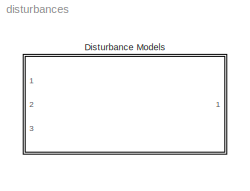
MODEL disturbances
KIND model
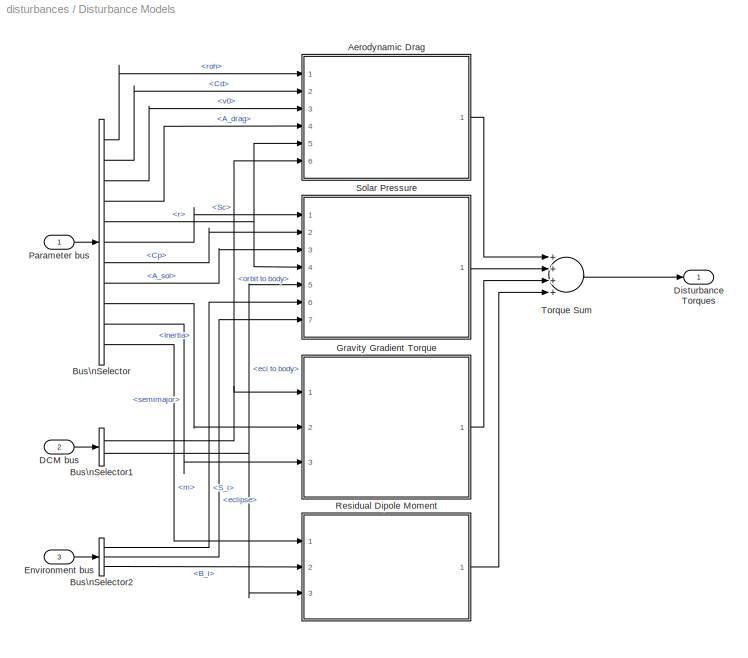
BLOCK [SubSystem] Disturbance Models
  MaskHideContents = off
  MinAlgLoopOccurrences = off
  Ports = [3, 1]
  RTWSystemCode = Auto
  TreatAsAtomicUnit = off
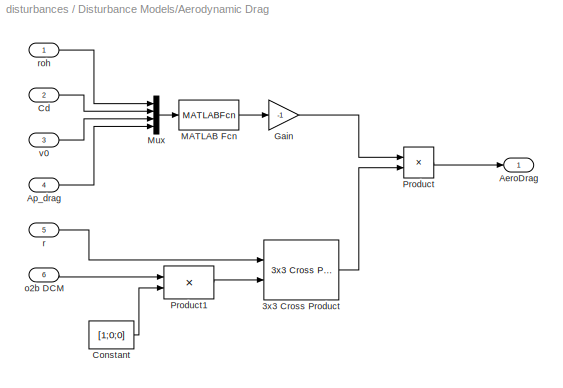
BLOCK [SubSystem] Disturbance Models/Aerodynamic Drag
  MaskHideContents = off
  MinAlgLoopOccurrences = off
  Ports = [6, 1]
  RTWSystemCode = Auto
  TreatAsAtomicUnit = off
BLOCK [Reference] Disturbance Models/Aerodynamic Drag/3x3 Cross Product  REF=aerolibutil/3x3 Cross Product
  Ports = [2, 1]
  ShowPortLabels = on
  SourceBlock = aerolibutil/3x3 Cross Product
  SourceType = CrossProduct
BLOCK [Outport] Disturbance Models/Aerodynamic Drag/AeroDrag
  BusOutputAsStruct = off
  IconDisplay = Port number
BLOCK [Inport] Disturbance Models/Aerodynamic Drag/Ap_drag
  IconDisplay = Port number
  Port = 4
BLOCK [Inport] Disturbance Models/Aerodynamic Drag/Cd
  IconDisplay = Port number
  Port = 2
BLOCK [Constant] Disturbance Models/Aerodynamic Drag/Constant
  Value = [1;0;0]
BLOCK [Gain] Disturbance Models/Aerodynamic Drag/Gain
  Gain = -1
  OutDataTypeMode = Inherit via internal rule
  ParameterDataTypeMode = Inherit via internal rule
  SaturateOnIntegerOverflow = off
BLOCK [MATLABFcn] Disturbance Models/Aerodynamic Drag/MATLAB Fcn
  MATLABFcn = 0.5*u(1)*u(2)*u(3)^2*u(4)
BLOCK [Mux] Disturbance Models/Aerodynamic Drag/Mux
  DisplayOption = bar
  Ports = [4, 1]
BLOCK [Product] Disturbance Models/Aerodynamic Drag/Product
  InputSameDT = off
  OutDataTypeMode = Inherit via internal rule
  Ports = [2, 1]
  SaturateOnIntegerOverflow = off
BLOCK [Product] Disturbance Models/Aerodynamic Drag/Product1
  InputSameDT = off
  Multiplication = Matrix(*)
  OutDataTypeMode = Inherit via internal rule
  Ports = [2, 1]
  SaturateOnIntegerOverflow = off
BLOCK [Inport] Disturbance Models/Aerodynamic Drag/o2b DCM
  IconDisplay = Port number
  Port = 6
BLOCK [Inport] Disturbance Models/Aerodynamic Drag/r
  IconDisplay = Port number
  Port = 5
BLOCK [Inport] Disturbance Models/Aerodynamic Drag/roh
  IconDisplay = Port number
BLOCK [Inport] Disturbance Models/Aerodynamic Drag/v0
  IconDisplay = Port number
  Port = 3
BLOCK [BusSelector] Disturbance Models/Bus\nSelector
  OutputSignals = Orbit Parameters.roh,Satellite Parameters.Cd,Orbit Parameters.v0,Satellite Parameters.A_drag,Satellite Parameters.r,Orbit Parameters.Sc,Satellite Parameters.Cp,Satellite Parameters.A_sol,Satellite Parameters.Inertia,Orbit Parameters.semimajor,Satellite Parameters.m
  Ports = [1, 11]
BLOCK [BusSelector] Disturbance Models/Bus\nSelector1
  OutputSignals = orbit to body,eci to body
  Ports = [1, 2]
BLOCK [BusSelector] Disturbance Models/Bus\nSelector2
  OutputSignals = Sun Model.S_i,Sun Model.eclipse,Magnetic Field Model.B_i
  Ports = [1, 3]
BLOCK [Inport] Disturbance Models/DCM bus
  IconDisplay = Port number
  Port = 2
BLOCK [Outport] Disturbance Models/Disturbance Torques
  BusOutputAsStruct = off
  IconDisplay = Port number
BLOCK [Inport] Disturbance Models/Environment bus
  IconDisplay = Port number
  Port = 3
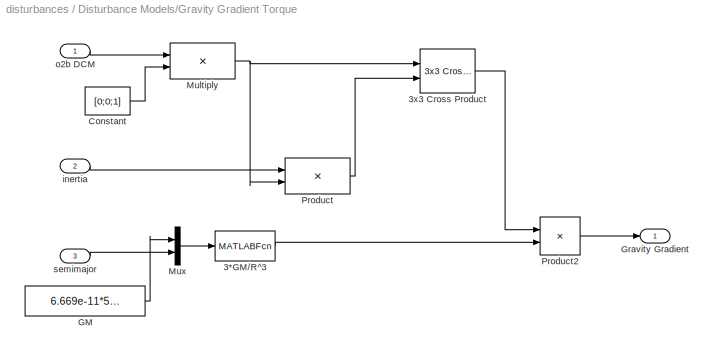
BLOCK [SubSystem] Disturbance Models/Gravity Gradient Torque
  MaskHideContents = off
  MinAlgLoopOccurrences = off
  Ports = [3, 1]
  RTWSystemCode = Auto
  TreatAsAtomicUnit = off
BLOCK [MATLABFcn] Disturbance Models/Gravity Gradient Torque/3*GM//R^3
  MATLABFcn = 3*u(1)/u(2)^3
BLOCK [Reference] Disturbance Models/Gravity Gradient Torque/3x3 Cross Product  REF=aerolibutil/3x3 Cross Product
  Ports = [2, 1]
  ShowPortLabels = on
  SourceBlock = aerolibutil/3x3 Cross Product
  SourceType = CrossProduct
BLOCK [Constant] Disturbance Models/Gravity Gradient Torque/Constant
  Value = [0;0;1]
BLOCK [Constant] Disturbance Models/Gravity Gradient Torque/GM
  Value = 6.669e-11*5.9742e24
BLOCK [Outport] Disturbance Models/Gravity Gradient Torque/Gravity Gradient
  BusOutputAsStruct = off
  IconDisplay = Port number
BLOCK [Product] Disturbance Models/Gravity Gradient Torque/Multiply
  InputSameDT = off
  Multiplication = Matrix(*)
  OutDataTypeMode = Inherit via internal rule
  Ports = [2, 1]
  SaturateOnIntegerOverflow = off
BLOCK [Mux] Disturbance Models/Gravity Gradient Torque/Mux
  DisplayOption = bar
  Inputs = 2
  Ports = [2, 1]
BLOCK [Product] Disturbance Models/Gravity Gradient Torque/Product
  InputSameDT = off
  Multiplication = Matrix(*)
  OutDataTypeMode = Inherit via internal rule
  Ports = [2, 1]
  SaturateOnIntegerOverflow = off
BLOCK [Product] Disturbance Models/Gravity Gradient Torque/Product2
  InputSameDT = off
  OutDataTypeMode = Inherit via internal rule
  Ports = [2, 1]
  SaturateOnIntegerOverflow = off
BLOCK [Inport] Disturbance Models/Gravity Gradient Torque/inertia
  IconDisplay = Port number
  Port = 2
BLOCK [Inport] Disturbance Models/Gravity Gradient Torque/o2b DCM
  IconDisplay = Port number
BLOCK [Inport] Disturbance Models/Gravity Gradient Torque/semimajor
  IconDisplay = Port number
  Port = 3
BLOCK [Inport] Disturbance Models/Parameter bus
  IconDisplay = Port number
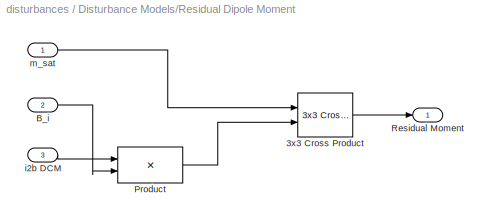
BLOCK [SubSystem] Disturbance Models/Residual Dipole Moment
  MaskHideContents = off
  MinAlgLoopOccurrences = off
  Ports = [3, 1]
  RTWSystemCode = Auto
  TreatAsAtomicUnit = off
BLOCK [Reference] Disturbance Models/Residual Dipole Moment/3x3 Cross Product  REF=aerolibutil/3x3 Cross Product
  Ports = [2, 1]
  ShowPortLabels = on
  SourceBlock = aerolibutil/3x3 Cross Product
  SourceType = CrossProduct
BLOCK [Inport] Disturbance Models/Residual Dipole Moment/B_i
  IconDisplay = Port number
  Port = 2
BLOCK [Product] Disturbance Models/Residual Dipole Moment/Product
  InputSameDT = off
  Multiplication = Matrix(*)
  OutDataTypeMode = Inherit via internal rule
  Ports = [2, 1]
  SaturateOnIntegerOverflow = off
BLOCK [Outport] Disturbance Models/Residual Dipole Moment/Residual Moment
  BusOutputAsStruct = off
  IconDisplay = Port number
BLOCK [Inport] Disturbance Models/Residual Dipole Moment/i2b DCM
  IconDisplay = Port number
  Port = 3
BLOCK [Inport] Disturbance Models/Residual Dipole Moment/m_sat
  IconDisplay = Port number
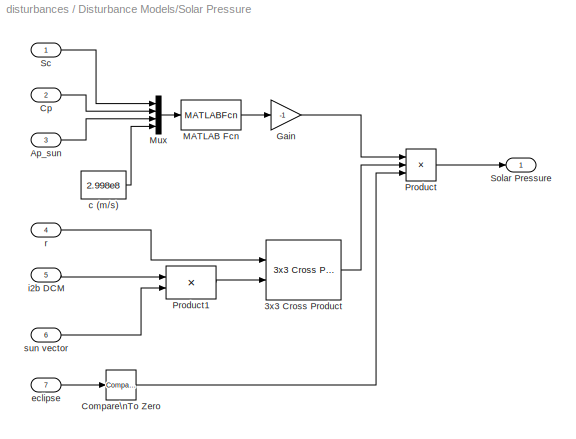
BLOCK [SubSystem] Disturbance Models/Solar Pressure
  MaskHideContents = off
  MinAlgLoopOccurrences = off
  Ports = [7, 1]
  RTWSystemCode = Auto
  TreatAsAtomicUnit = off
BLOCK [Reference] Disturbance Models/Solar Pressure/3x3 Cross Product  REF=aerolibutil/3x3 Cross Product
  Ports = [2, 1]
  ShowPortLabels = on
  SourceBlock = aerolibutil/3x3 Cross Product
  SourceType = CrossProduct
BLOCK [Inport] Disturbance Models/Solar Pressure/Ap_sun
  IconDisplay = Port number
  Port = 3
BLOCK [Reference] Disturbance Models/Solar Pressure/Compare\nTo Zero  REF=simulink/Logic and Bit\nOperations/Compare\nTo Zero
  LogicOutDataTypeMode = uint8
  Ports = [1, 1]
  ShowPortLabels = on
  SourceBlock = simulink/Logic and Bit\nOperations/Compare\nTo Zero
  SourceType = Compare To Zero
  ZeroCross = off
  relop = ==
BLOCK [Inport] Disturbance Models/Solar Pressure/Cp
  IconDisplay = Port number
  Port = 2
BLOCK [Gain] Disturbance Models/Solar Pressure/Gain
  Gain = -1
  OutDataTypeMode = Inherit via internal rule
  ParameterDataTypeMode = Inherit via internal rule
  SaturateOnIntegerOverflow = off
BLOCK [MATLABFcn] Disturbance Models/Solar Pressure/MATLAB Fcn
  MATLABFcn = u(1)/u(4)*u(2)*u(3)
BLOCK [Mux] Disturbance Models/Solar Pressure/Mux
  DisplayOption = bar
  Ports = [4, 1]
BLOCK [Product] Disturbance Models/Solar Pressure/Product
  InputSameDT = off
  Inputs = 3
  OutDataTypeMode = Inherit via internal rule
  Ports = [3, 1]
  SaturateOnIntegerOverflow = off
BLOCK [Product] Disturbance Models/Solar Pressure/Product1
  InputSameDT = off
  Multiplication = Matrix(*)
  OutDataTypeMode = Inherit via internal rule
  Ports = [2, 1]
  SaturateOnIntegerOverflow = off
BLOCK [Inport] Disturbance Models/Solar Pressure/Sc
  IconDisplay = Port number
BLOCK [Outport] Disturbance Models/Solar Pressure/Solar Pressure
  BusOutputAsStruct = off
  IconDisplay = Port number
BLOCK [Constant] Disturbance Models/Solar Pressure/c (m//s)
  Value = 2.998e8
BLOCK [Inport] Disturbance Models/Solar Pressure/eclipse
  IconDisplay = Port number
  Port = 7
BLOCK [Inport] Disturbance Models/Solar Pressure/i2b DCM
  IconDisplay = Port number
  Port = 5
BLOCK [Inport] Disturbance Models/Solar Pressure/r
  IconDisplay = Port number
  Port = 4
BLOCK [Inport] Disturbance Models/Solar Pressure/sun vector
  IconDisplay = Port number
  Port = 6
BLOCK [Sum] Disturbance Models/Torque Sum
  InputSameDT = off
  Inputs = ++++
  OutDataTypeMode = Inherit via internal rule
  OutScaling = 2^-10
  Ports = [4, 1]
  SaturateOnIntegerOverflow = off
LINE Disturbance Models/Aerodynamic Drag/3x3 Cross Product:1 -> Disturbance Models/Aerodynamic Drag/Product:2
LINE Disturbance Models/Aerodynamic Drag/Ap_drag:1 -> Disturbance Models/Aerodynamic Drag/Mux:4
LINE Disturbance Models/Aerodynamic Drag/Cd:1 -> Disturbance Models/Aerodynamic Drag/Mux:2
LINE Disturbance Models/Aerodynamic Drag/Constant:1 -> Disturbance Models/Aerodynamic Drag/Product1:2
LINE Disturbance Models/Aerodynamic Drag/Gain:1 -> Disturbance Models/Aerodynamic Drag/Product:1
LINE Disturbance Models/Aerodynamic Drag/MATLAB Fcn:1 -> Disturbance Models/Aerodynamic Drag/Gain:1
LINE Disturbance Models/Aerodynamic Drag/Mux:1 -> Disturbance Models/Aerodynamic Drag/MATLAB Fcn:1
LINE Disturbance Models/Aerodynamic Drag/Product1:1 -> Disturbance Models/Aerodynamic Drag/3x3 Cross Product:2
LINE Disturbance Models/Aerodynamic Drag/Product:1 -> Disturbance Models/Aerodynamic Drag/AeroDrag:1
LINE Disturbance Models/Aerodynamic Drag/o2b DCM:1 -> Disturbance Models/Aerodynamic Drag/Product1:1
LINE Disturbance Models/Aerodynamic Drag/r:1 -> Disturbance Models/Aerodynamic Drag/3x3 Cross Product:1
LINE Disturbance Models/Aerodynamic Drag/roh:1 -> Disturbance Models/Aerodynamic Drag/Mux:1
LINE Disturbance Models/Aerodynamic Drag/v0:1 -> Disturbance Models/Aerodynamic Drag/Mux:3
LINE Disturbance Models/Aerodynamic Drag:1 -> Disturbance Models/Torque Sum:1
NET Disturbance Models/Bus\nSelector1:1 -> Disturbance Models/Aerodynamic Drag:6, Disturbance Models/Gravity Gradient Torque:1
NET Disturbance Models/Bus\nSelector1:2 -> Disturbance Models/Residual Dipole Moment:3, Disturbance Models/Solar Pressure:5
LINE Disturbance Models/Bus\nSelector2:1 -> Disturbance Models/Solar Pressure:6
LINE Disturbance Models/Bus\nSelector2:2 -> Disturbance Models/Solar Pressure:7
LINE Disturbance Models/Bus\nSelector2:3 -> Disturbance Models/Residual Dipole Moment:2
LINE Disturbance Models/Bus\nSelector:1 -> Disturbance Models/Aerodynamic Drag:1
LINE Disturbance Models/Bus\nSelector:10 -> Disturbance Models/Gravity Gradient Torque:3
LINE Disturbance Models/Bus\nSelector:11 -> Disturbance Models/Residual Dipole Moment:1
LINE Disturbance Models/Bus\nSelector:2 -> Disturbance Models/Aerodynamic Drag:2
LINE Disturbance Models/Bus\nSelector:3 -> Disturbance Models/Aerodynamic Drag:3
LINE Disturbance Models/Bus\nSelector:4 -> Disturbance Models/Aerodynamic Drag:4
NET Disturbance Models/Bus\nSelector:5 -> Disturbance Models/Aerodynamic Drag:5, Disturbance Models/Solar Pressure:4
LINE Disturbance Models/Bus\nSelector:6 -> Disturbance Models/Solar Pressure:1
LINE Disturbance Models/Bus\nSelector:7 -> Disturbance Models/Solar Pressure:2
LINE Disturbance Models/Bus\nSelector:8 -> Disturbance Models/Solar Pressure:3
LINE Disturbance Models/Bus\nSelector:9 -> Disturbance Models/Gravity Gradient Torque:2
LINE Disturbance Models/DCM bus:1 -> Disturbance Models/Bus\nSelector1:1
LINE Disturbance Models/Environment bus:1 -> Disturbance Models/Bus\nSelector2:1
LINE Disturbance Models/Gravity Gradient Torque/3*GM//R^3:1 -> Disturbance Models/Gravity Gradient Torque/Product2:2
LINE Disturbance Models/Gravity Gradient Torque/3x3 Cross Product:1 -> Disturbance Models/Gravity Gradient Torque/Product2:1
LINE Disturbance Models/Gravity Gradient Torque/Constant:1 -> Disturbance Models/Gravity Gradient Torque/Multiply:2
LINE Disturbance Models/Gravity Gradient Torque/GM:1 -> Disturbance Models/Gravity Gradient Torque/Mux:1
NET Disturbance Models/Gravity Gradient Torque/Multiply:1 -> Disturbance Models/Gravity Gradient Torque/3x3 Cross Product:1, Disturbance Models/Gravity Gradient Torque/Product:2
LINE Disturbance Models/Gravity Gradient Torque/Mux:1 -> Disturbance Models/Gravity Gradient Torque/3*GM//R^3:1
LINE Disturbance Models/Gravity Gradient Torque/Product2:1 -> Disturbance Models/Gravity Gradient Torque/Gravity Gradient:1
LINE Disturbance Models/Gravity Gradient Torque/Product:1 -> Disturbance Models/Gravity Gradient Torque/3x3 Cross Product:2
LINE Disturbance Models/Gravity Gradient Torque/inertia:1 -> Disturbance Models/Gravity Gradient Torque/Product:1
LINE Disturbance Models/Gravity Gradient Torque/o2b DCM:1 -> Disturbance Models/Gravity Gradient Torque/Multiply:1
LINE Disturbance Models/Gravity Gradient Torque/semimajor:1 -> Disturbance Models/Gravity Gradient Torque/Mux:2
LINE Disturbance Models/Gravity Gradient Torque:1 -> Disturbance Models/Torque Sum:3
LINE Disturbance Models/Parameter bus:1 -> Disturbance Models/Bus\nSelector:1
LINE Disturbance Models/Residual Dipole Moment/3x3 Cross Product:1 -> Disturbance Models/Residual Dipole Moment/Residual Moment:1
LINE Disturbance Models/Residual Dipole Moment/B_i:1 -> Disturbance Models/Residual Dipole Moment/Product:2
LINE Disturbance Models/Residual Dipole Moment/Product:1 -> Disturbance Models/Residual Dipole Moment/3x3 Cross Product:2
LINE Disturbance Models/Residual Dipole Moment/i2b DCM:1 -> Disturbance Models/Residual Dipole Moment/Product:1
LINE Disturbance Models/Residual Dipole Moment/m_sat:1 -> Disturbance Models/Residual Dipole Moment/3x3 Cross Product:1
LINE Disturbance Models/Residual Dipole Moment:1 -> Disturbance Models/Torque Sum:4
LINE Disturbance Models/Solar Pressure/3x3 Cross Product:1 -> Disturbance Models/Solar Pressure/Product:2
LINE Disturbance Models/Solar Pressure/Ap_sun:1 -> Disturbance Models/Solar Pressure/Mux:3
LINE Disturbance Models/Solar Pressure/Compare\nTo Zero:1 -> Disturbance Models/Solar Pressure/Product:3
LINE Disturbance Models/Solar Pressure/Cp:1 -> Disturbance Models/Solar Pressure/Mux:2
LINE Disturbance Models/Solar Pressure/Gain:1 -> Disturbance Models/Solar Pressure/Product:1
LINE Disturbance Models/Solar Pressure/MATLAB Fcn:1 -> Disturbance Models/Solar Pressure/Gain:1
LINE Disturbance Models/Solar Pressure/Mux:1 -> Disturbance Models/Solar Pressure/MATLAB Fcn:1
LINE Disturbance Models/Solar Pressure/Product1:1 -> Disturbance Models/Solar Pressure/3x3 Cross Product:2
LINE Disturbance Models/Solar Pressure/Product:1 -> Disturbance Models/Solar Pressure/Solar Pressure:1
LINE Disturbance Models/Solar Pressure/Sc:1 -> Disturbance Models/Solar Pressure/Mux:1
LINE Disturbance Models/Solar Pressure/c (m//s):1 -> Disturbance Models/Solar Pressure/Mux:4
LINE Disturbance Models/Solar Pressure/eclipse:1 -> Disturbance Models/Solar Pressure/Compare\nTo Zero:1
LINE Disturbance Models/Solar Pressure/i2b DCM:1 -> Disturbance Models/Solar Pressure/Product1:1
LINE Disturbance Models/Solar Pressure/r:1 -> Disturbance Models/Solar Pressure/3x3 Cross Product:1
LINE Disturbance Models/Solar Pressure/sun vector:1 -> Disturbance Models/Solar Pressure/Product1:2
LINE Disturbance Models/Solar Pressure:1 -> Disturbance Models/Torque Sum:2
LINE Disturbance Models/Torque Sum:1 -> Disturbance Models/Disturbance Torques:1
note: NET lines group one-source signal fan-out (src -> all destinations, sorted); 1:1 wires keep LINE
